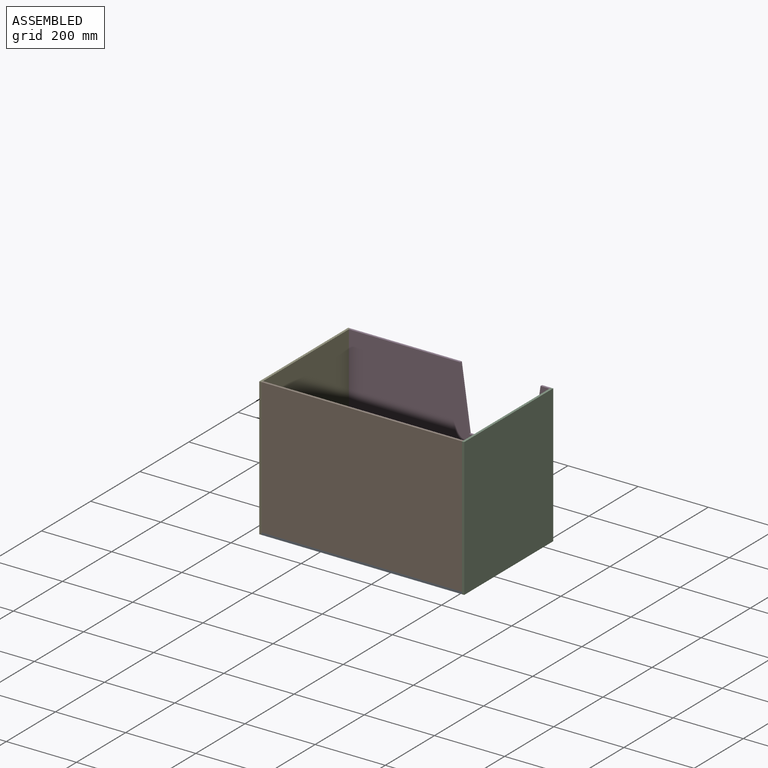
[diagram: assembled view]
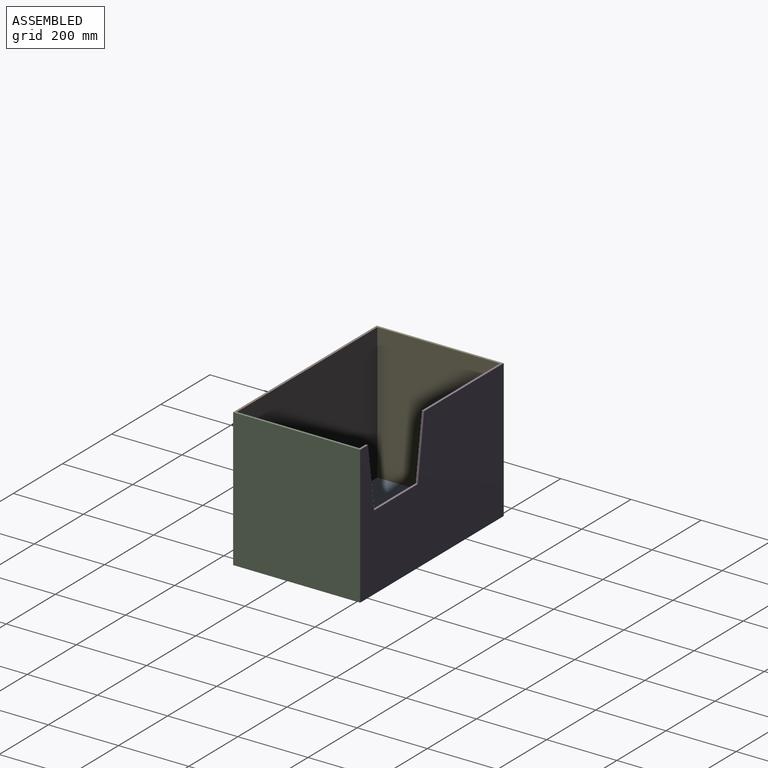
[diagram: assembled view, second angle]
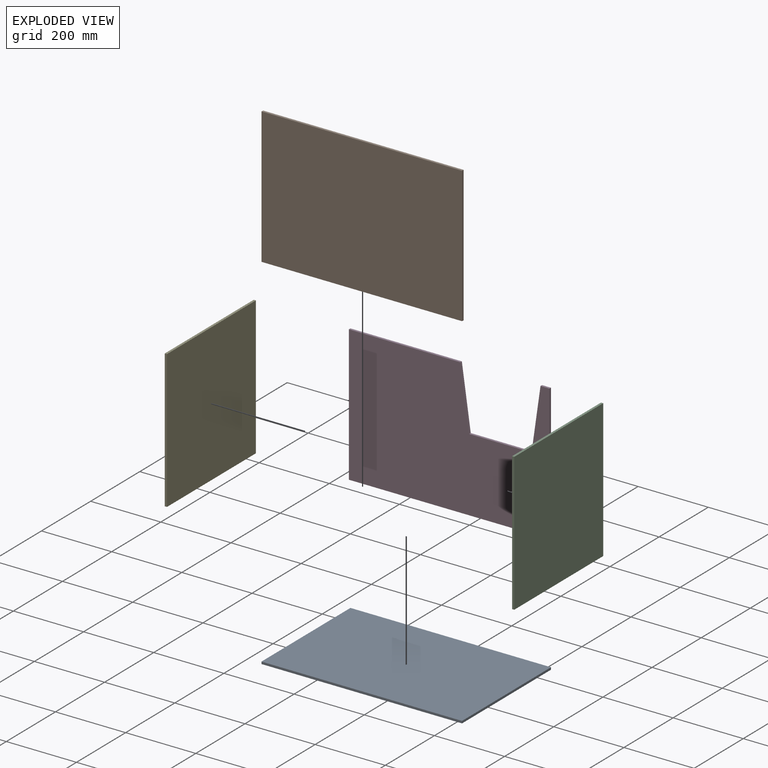
[diagram: exploded view]
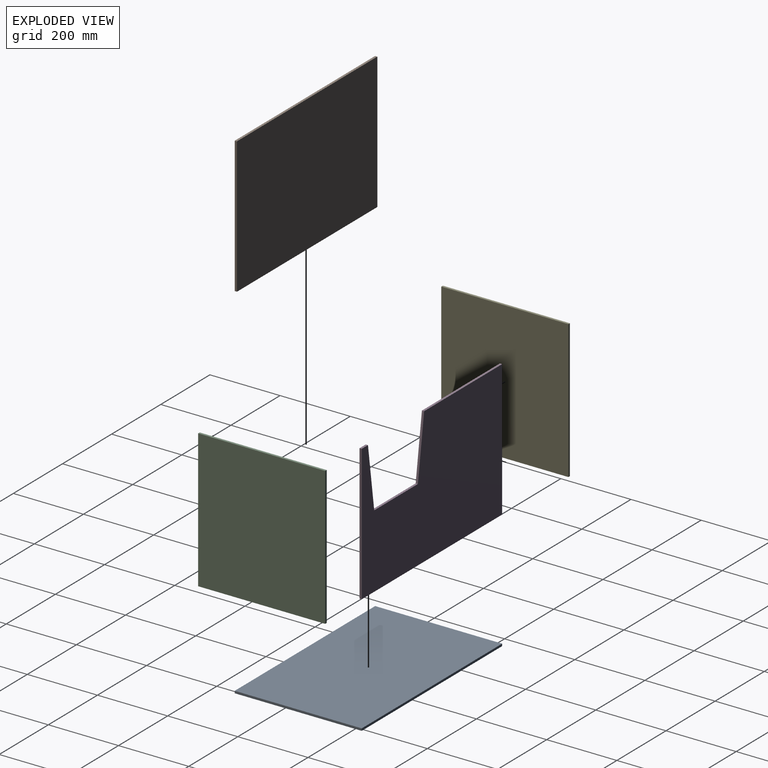
[diagram: exploded view, second angle]
ASSEMBLY  parts=5 mates=4
PART A: 6 faces, bbox 571.5x362x6.4 mm
  f0: plane 571.5x6.35mm, normal (0,-1,0), area 3629mm2, adj f1,f3,f4,f5
  f1: plane 361.95x6.35mm, normal (1,0,0), area 2298.4mm2, adj f0,f2,f4,f5
  f2: plane 571.5x6.35mm, normal (0,1,0), area 3629mm2, adj f1,f3,f4,f5
  f3: plane 361.95x6.35mm, normal (-1,0,0), area 2298.4mm2, adj f0,f2,f4,f5
  f4: plane 571.5x361.95mm, normal (0,0,1), area 206854.4mm2, adj f0,f1,f2,f3
  f5: plane 571.5x361.95mm, normal (0,0,-1), area 206854.4mm2, adj f0,f1,f2,f3
PART B: 6 faces, bbox 571.5x6.4x387.4 mm
  f0: plane 387.35x6.35mm, normal (1,0,0), area 2459.7mm2, adj f1,f3,f4,f5
  f1: plane 571.5x6.35mm, normal (0,0,1), area 3629mm2, adj f0,f2,f4,f5
  f2: plane 387.35x6.35mm, normal (-1,0,0), area 2459.7mm2, adj f1,f3,f4,f5
  f3: plane 571.5x6.35mm, normal (0,0,-1), area 3629mm2, adj f0,f2,f4,f5
  f4: plane 571.5x387.35mm, normal (0,-1,0), area 221370.5mm2, adj f0,f1,f2,f3
  f5: plane 571.5x387.35mm, normal (0,1,0), area 221370.5mm2, adj f0,f1,f2,f3
PART C: 6 faces, bbox 6.4x362x393.7 mm
  f0: plane 393.7x6.35mm, normal (0,1,0), area 2500mm2, adj f1,f3,f4,f5
  f1: plane 361.95x6.35mm, normal (0,0,1), area 2298.4mm2, adj f0,f2,f4,f5
  f2: plane 393.7x6.35mm, normal (0,-1,0), area 2500mm2, adj f1,f3,f4,f5
  f3: plane 361.95x6.35mm, normal (0,0,-1), area 2298.4mm2, adj f0,f2,f4,f5
  f4: plane 393.7x361.95mm, normal (1,0,0), area 142499.7mm2, adj f0,f1,f2,f3
  f5: plane 393.7x361.95mm, normal (-1,0,0), area 142499.7mm2, adj f0,f1,f2,f3
PART D: 10 faces, bbox 571.5x6.4x387.4 mm
  f0: plane 317.5x6.35mm, normal (0,0,1), area 2016.1mm2, adj f1,f2,f5,f8
  f1: plane 571.5x387.35mm, normal (0,-1,0), area 185241.6mm2, adj f0,f3,f4,f5,f6,f7,f8,f9
  f2: plane 571.5x387.35mm, normal (0,1,0), area 185241.6mm2, adj f0,f3,f4,f5,f6,f7,f8,f9
  f3: plane 387.35x6.35mm, normal (1,0,0), area 2459.7mm2, adj f1,f2,f4,f6
  f4: plane 25.4x6.35mm, normal (0,0,1), area 161.3mm2, adj f1,f2,f3,f7
  f5: plane 387.35x6.35mm, normal (-1,0,0), area 2459.7mm2, adj f0,f1,f2,f6
  f6: plane 571.5x6.35mm, normal (0,0,-1), area 3629mm2, adj f1,f2,f3,f5
  f7: plane 177.8x25.4mm, normal (-0.99,0,0.14), area 1140.5mm2, adj f1,f2,f4,f9
  f8: plane 177.8x25.4mm, normal (0.99,0,0.14), area 1140.5mm2, adj f0,f1,f2,f9
  f9: plane 177.8x6.35mm, normal (0,0,1), area 1129mm2, adj f1,f2,f7,f8
PART E: same geometry as C
PLACE A t=(-57.01,-147.71,-117.31)mm
PLACE B t=(-57.01,-322.33,82.72)mm
PLACE C t=(228.74,-147.71,79.54)mm
PLACE D t=(-57.01,33.27,82.72)mm
PLACE E t=(-349.11,-147.71,79.54)mm
MATE fastened D.f6 <-> A.f4  axis (0,0,-1) through (228.74,33.27,-110.96)mm
MATE fastened A.f1 <-> C.f5  axis (1,0,0) through (228.74,-328.68,-117.31)mm
MATE fastened B.f3 <-> A.f4  axis (0,0,-1) through (-342.76,-328.68,-110.96)mm
MATE fastened A.f3 <-> E.f4  axis (-1,0,0) through (-342.76,-328.68,-117.31)mm
